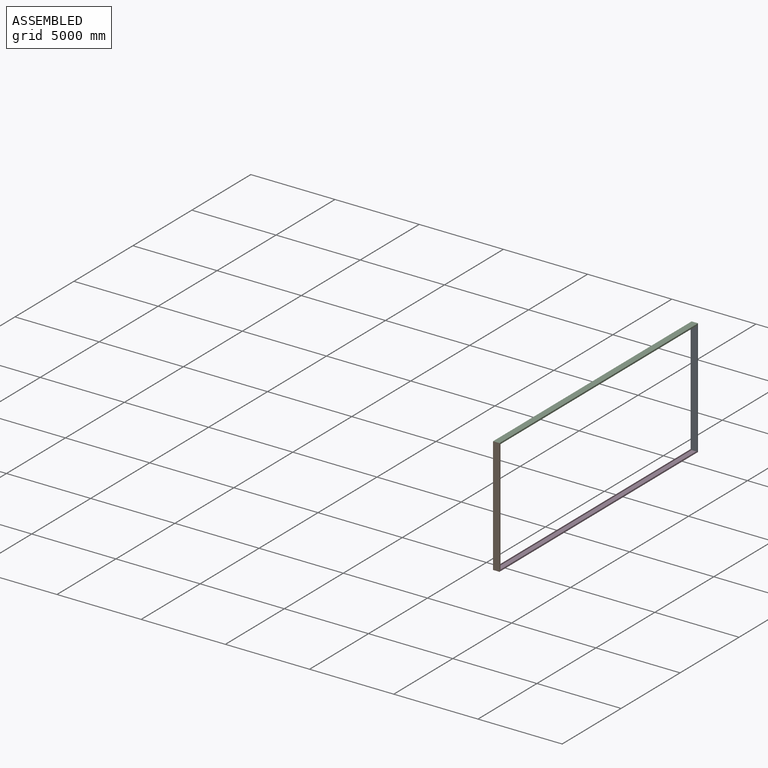
[diagram: assembled view]
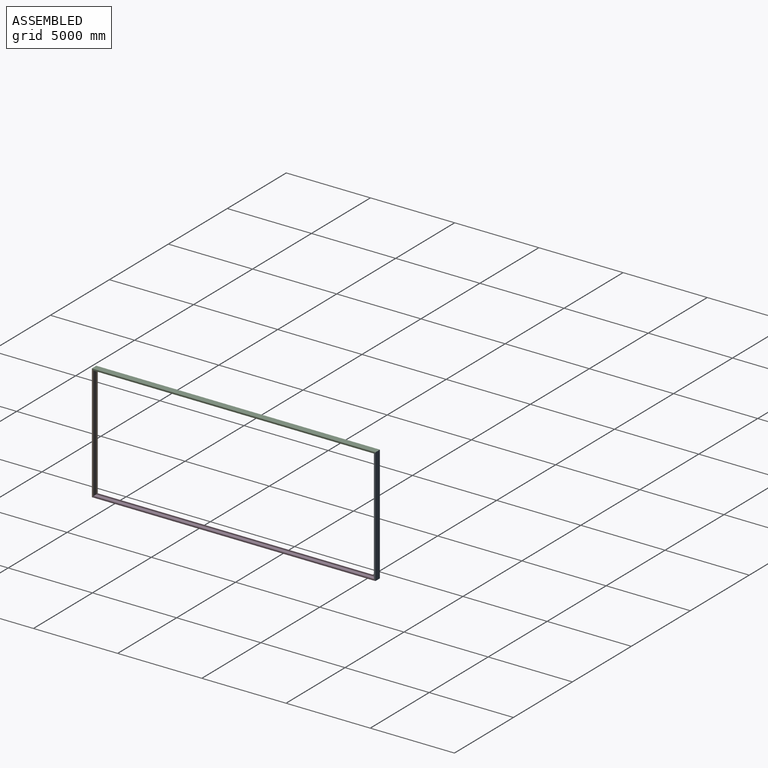
[diagram: assembled view, second angle]
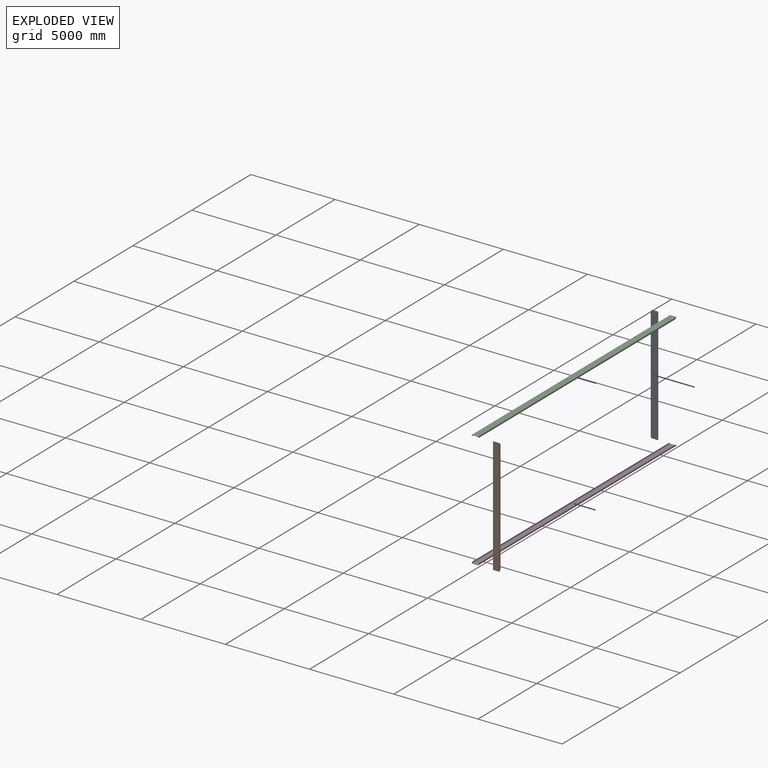
[diagram: exploded view]
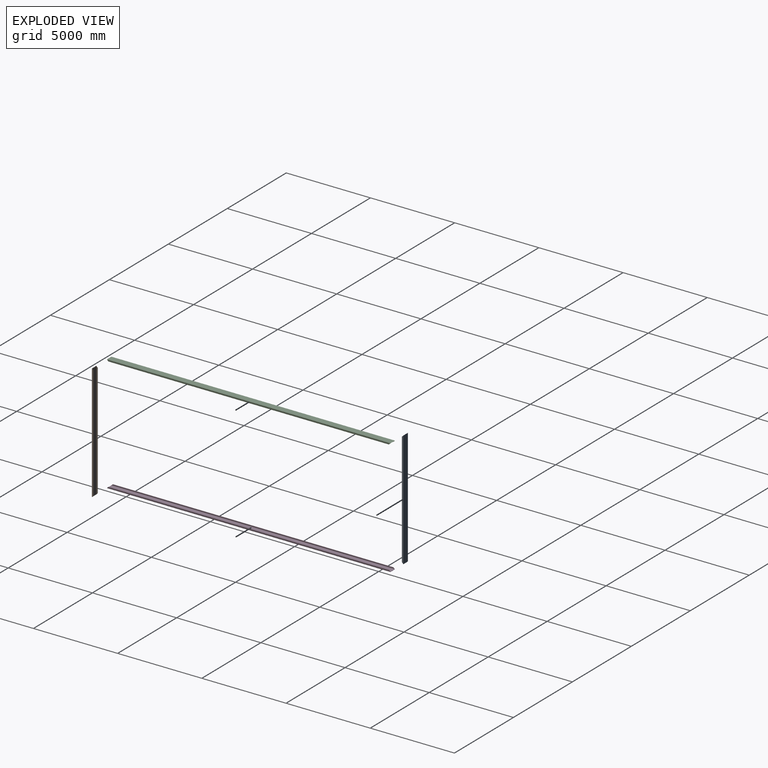
[diagram: exploded view, second angle]
ASSEMBLY  parts=4 mates=3
PART A: 14 faces, bbox 88.9x6908.8x381 mm
  f0: plane 6731x5.08mm, normal (1,0,0), area 34193.5mm2, adj f6,f10,f12,f13
  f1: plane 6731x5.08mm, normal (1,0,0), area 34193.5mm2, adj f3,f7,f12,f13
  f2: plane 6868.16x60.96mm, normal (0,0,-1), area 414966.9mm2, adj f6,f9,f12,f13
  f3: plane 6908.8x88.9mm, normal (0,0,-1), area 606289.1mm2, adj f1,f11,f12,f13
  f4: plane 6868.16x60.96mm, normal (0,0,1), area 414966.9mm2, adj f7,f8,f12,f13
  f5: plane 6883.4x340.36mm, normal (1,0,0), area 2342834mm2, adj f8,f9,f12,f13
  f6: cylinder r=7.62mm len=6746.24mm, axis (0,1,0), area 80632.8mm2, adj f0,f2,f12,f13
  f7: cylinder r=7.62mm len=6746.24mm, axis (0,1,0), area 80632.8mm2, adj f1,f4,f12,f13
  f8: cylinder r=7.62mm len=6883.4mm, axis (0,-1,0), area 82324.4mm2, adj f4,f5,f12,f13
  f9: cylinder r=7.62mm len=6883.4mm, axis (0,-1,0), area 82324.4mm2, adj f2,f5,f12,f13
  f10: plane 6908.8x88.9mm, normal (0,0,1), area 606289.1mm2, adj f0,f11,f12,f13
  f11: plane 6908.8x381mm, normal (-1,0,0), area 2632252.8mm2, adj f3,f10,f12,f13
  f12: plane 381x88.9mm, normal (0.71,0.71,0), area 9580.1mm2, adj f0,f1,f2,f3,f4,f5,f6,f7
  f13: plane 381x88.9mm, normal (0.71,-0.71,0), area 9580.1mm2, adj f0,f1,f2,f3,f4,f5,f6,f7
PART B: same geometry as A
PART C: 14 faces, bbox 88.9x16840.2x381 mm
  f0: plane 16662.4x5.08mm, normal (1,0,0), area 84645mm2, adj f6,f10,f12,f13
  f1: plane 16662.4x5.08mm, normal (1,0,0), area 84645mm2, adj f3,f7,f12,f13
  f2: plane 16799.56x60.96mm, normal (0,0,-1), area 1020385.1mm2, adj f6,f9,f12,f13
  f3: plane 16840.2x88.9mm, normal (0,0,-1), area 1489190.6mm2, adj f1,f11,f12,f13
  f4: plane 16799.56x60.96mm, normal (0,0,1), area 1020385.1mm2, adj f7,f8,f12,f13
  f5: plane 16814.8x340.36mm, normal (1,0,0), area 5723085.3mm2, adj f8,f9,f12,f13
  f6: cylinder r=7.62mm len=16677.64mm, axis (0,1,0), area 199506.3mm2, adj f0,f2,f12,f13
  f7: cylinder r=7.62mm len=16677.64mm, axis (0,1,0), area 199506.3mm2, adj f1,f4,f12,f13
  f8: cylinder r=7.62mm len=16814.8mm, axis (0,-1,0), area 201197.9mm2, adj f4,f5,f12,f13
  f9: cylinder r=7.62mm len=16814.8mm, axis (0,-1,0), area 201197.9mm2, adj f2,f5,f12,f13
  f10: plane 16840.2x88.9mm, normal (0,0,1), area 1489190.6mm2, adj f0,f11,f12,f13
  f11: plane 16840.2x381mm, normal (-1,0,0), area 6416116.2mm2, adj f3,f10,f12,f13
  f12: plane 381x88.9mm, normal (0.71,0.71,0), area 9580.1mm2, adj f0,f1,f2,f3,f4,f5,f6,f7
  f13: plane 381x88.9mm, normal (0.71,-0.71,0), area 9580.1mm2, adj f0,f1,f2,f3,f4,f5,f6,f7
PART D: same geometry as C
PLACE A rot(axis=(-0.58,0.58,-0.58),120deg) t=(-23714.5,-29205.52,1643.97)mm
PLACE B rot(axis=(0.58,0.58,0.58),120deg) t=(-23714.5,-45956.82,8552.77)mm
PLACE C rot(axis=(0,1,0),90deg) t=(-23714.5,-29161.07,8508.32)mm
PLACE D rot(axis=(0,-1,0),90deg) t=(-23714.5,-29161.07,1688.42)mm
MATE fastened D.f10 <-> B.f3  axis (-1,0,0) through (-23905,-46001.27,1643.97)mm
MATE fastened C.f3 <-> B.f3  axis (-1,0,0) through (-23905,-46001.27,8552.77)mm
MATE fastened A.f3 <-> D.f10  axis (1,0,0) through (-23905,-29161.07,1643.97)mm
